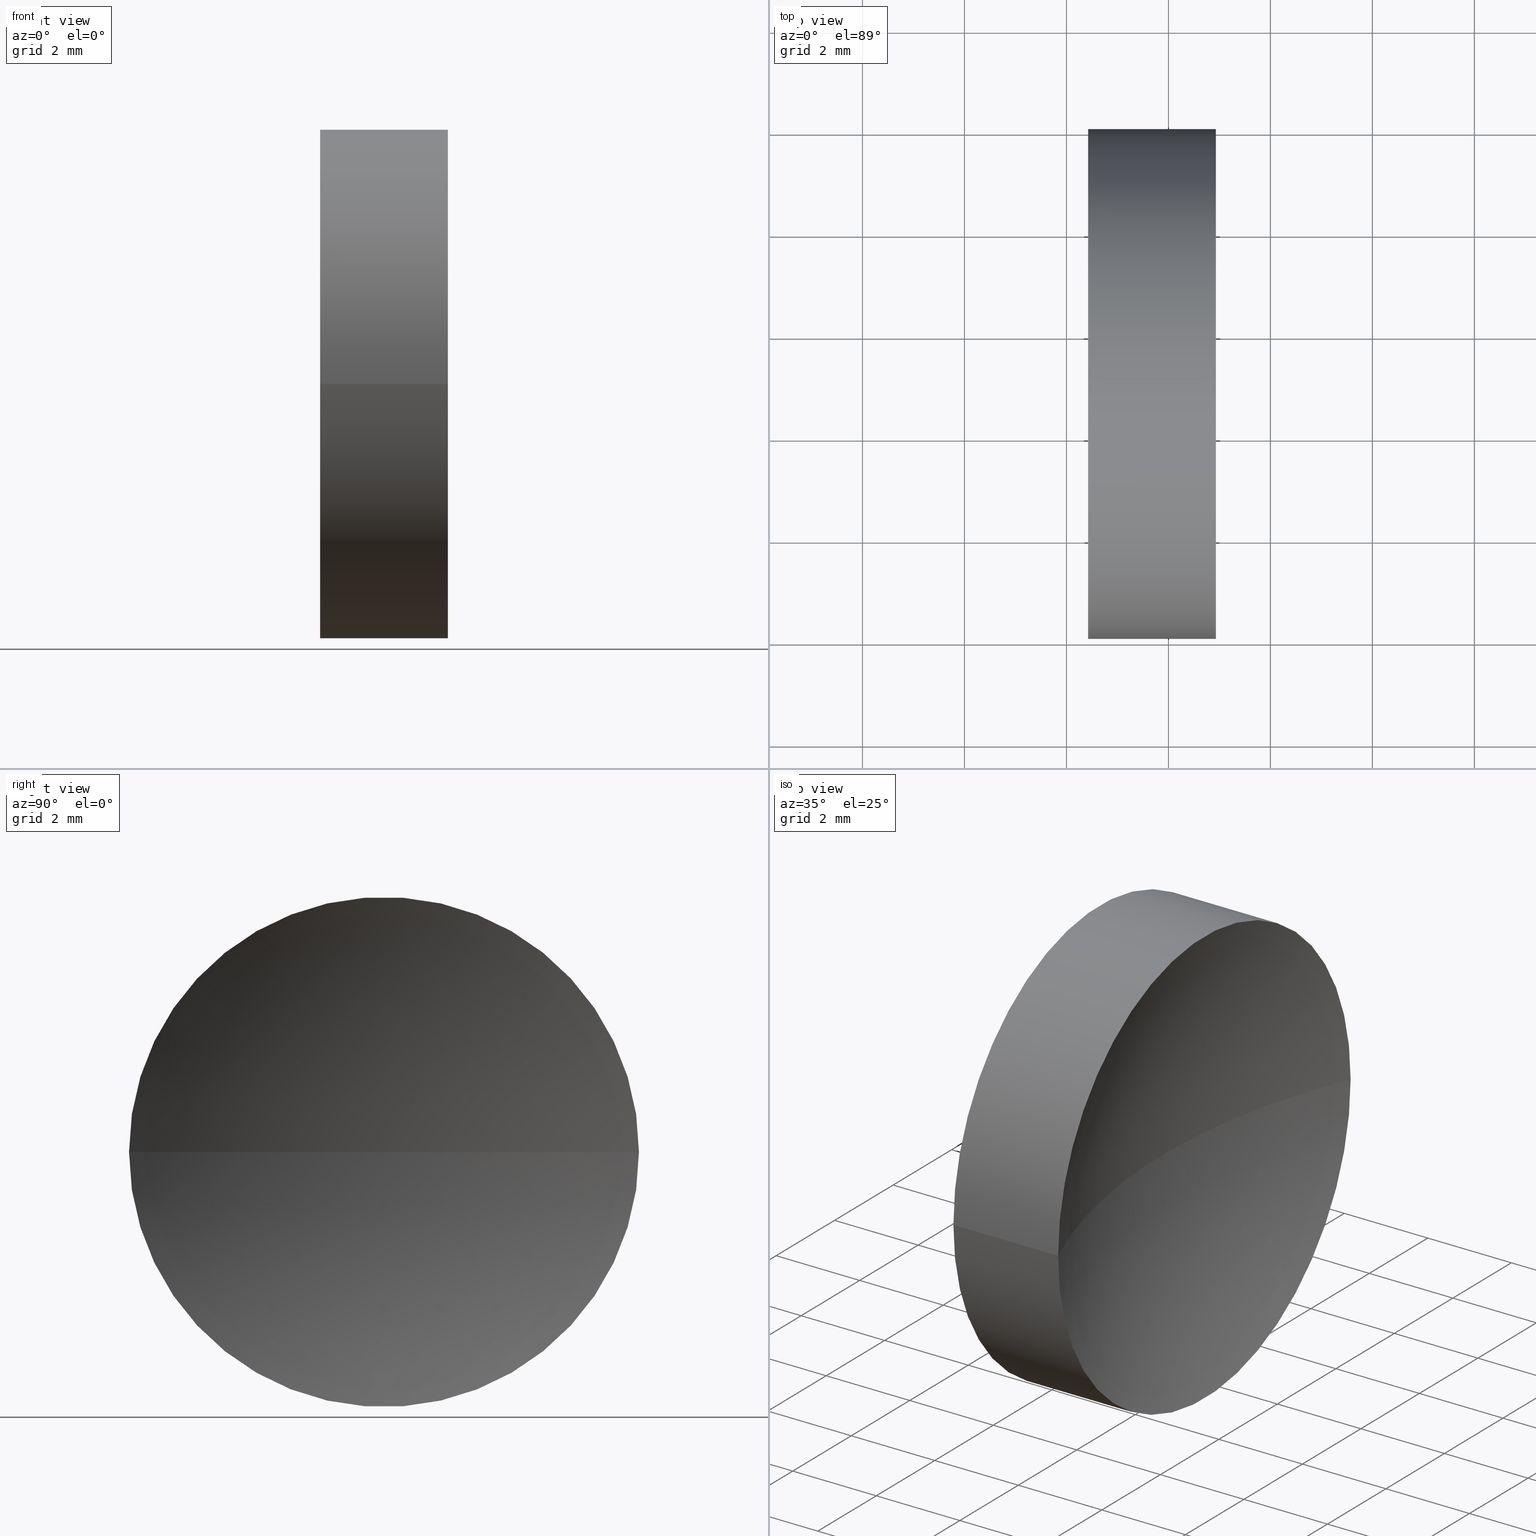
[diagram: canonical four-view strip — front | top / right | iso, engineering-drawing reading convention]
A machine part, canonical four-view strip (front | top / right | iso — engineering-drawing reading convention). The complete STEP part file that produces these views, byte-faithful:
ISO-10303-21;
HEADER;
FILE_DESCRIPTION (( 'STEP AP214' ),
    '1' );
FILE_NAME ('120133.STEP',
    '2019-06-19T06:20:14',
    ( '' ),
    ( '' ),
    'SwSTEP 2.0',
    'SolidWorks 2016',
    '' );
FILE_SCHEMA (( 'AUTOMOTIVE_DESIGN' ));
ENDSEC;

DATA;
#1 = UNCERTAINTY_MEASURE_WITH_UNIT (LENGTH_MEASURE( 1.000000000000000100E-005 ), #157, 'distance_accuracy_value', 'NONE');
#2 = EDGE_LOOP ( 'NONE', ( #72, #146, #71 ) ) ;
#3 = CIRCLE ( 'NONE', #47, 12.91000000000000500 ) ;
#4 = DIRECTION ( 'NONE',  ( 0.0000000000000000000, -1.000000000000000000, 0.0000000000000000000 ) ) ;
#5 = PLANE ( 'NONE',  #114 ) ;
#6 = DIRECTION ( 'NONE',  ( 0.0000000000000000000, -1.000000000000000000, 0.0000000000000000000 ) ) ;
#7 = FILL_AREA_STYLE_COLOUR ( '', #107 ) ;
#8 = CARTESIAN_POINT ( 'NONE',  ( 21.50597511808246100, 18.03112609140304200, 6.123233995736768300E-016 ) ) ;
#9 = PRODUCT_DEFINITION ( 'δ֪', '', #22, #16 ) ;
#10 = PRODUCT_CONTEXT ( 'NONE', #126, 'mechanical' ) ;
#11 = ORIENTED_EDGE ( 'NONE', *, *, #96, .T. ) ;
#12 = SPHERICAL_SURFACE ( 'NONE', #59, 12.91000000000000500 ) ;
#13 = CIRCLE ( 'NONE', #61, 5.000000000000000900 ) ;
#14 = VERTEX_POINT ( 'NONE', #17 ) ;
#15 = AXIS2_PLACEMENT_3D ( 'NONE', #130, #144, #160 ) ;
#16 = PRODUCT_DEFINITION_CONTEXT ( 'detailed design', #131, 'design' ) ;
#17 = CARTESIAN_POINT ( 'NONE',  ( 24.93179112749126200, 8.031126091403027800, -6.123233995736775200E-016 ) ) ;
#18 = DIRECTION ( 'NONE',  ( 1.000000000000000000, -3.159171411554934600E-016, 0.0000000000000000000 ) ) ;
#19 = ADVANCED_FACE ( 'NONE', ( #45 ), #68, .F. ) ;
#20 = FILL_AREA_STYLE_COLOUR ( '', #58 ) ;
#21 = DIRECTION ( 'NONE',  ( 0.0000000000000000000, -1.000000000000000000, 0.0000000000000000000 ) ) ;
#22 = PRODUCT_DEFINITION_FORMATION_WITH_SPECIFIED_SOURCE ( '�κ�', '', #31, .NOT_KNOWN. ) ;
#23 = DIRECTION ( 'NONE',  ( 5.374820994505984400E-016, 1.000000000000000000, 0.0000000000000000000 ) ) ;
#24 = DIRECTION ( 'NONE',  ( -1.000000000000000000, 3.159171411554934600E-016, -0.0000000000000000000 ) ) ;
#25 = VERTEX_POINT ( 'NONE', #150 ) ;
#26 = FACE_OUTER_BOUND ( 'NONE', #2, .T. ) ;
#27 = ADVANCED_FACE ( 'NONE', ( #83 ), #5, .F. ) ;
#28 = CARTESIAN_POINT ( 'NONE',  ( 21.50597511808246100, 13.03112609140304200, 0.0000000000000000000 ) ) ;
#29 = DIRECTION ( 'NONE',  ( 3.159171411554934600E-016, 1.000000000000000000, 0.0000000000000000000 ) ) ;
#30 =( NAMED_UNIT ( * ) PLANE_ANGLE_UNIT ( ) SI_UNIT ( $, .RADIAN. ) );
#31 = PRODUCT ( '120133', '120133', '', ( #10 ) ) ;
#32 = CIRCLE ( 'NONE', #145, 5.000000000000000900 ) ;
#33 = CARTESIAN_POINT ( 'NONE',  ( 22.42423205362066000, 8.031126091403040200, 0.0000000000000000000 ) ) ;
#34 = SURFACE_SIDE_STYLE ('',( #143 ) ) ;
#35 =( GEOMETRIC_REPRESENTATION_CONTEXT ( 3 ) GLOBAL_UNCERTAINTY_ASSIGNED_CONTEXT ( ( #36 ) ) GLOBAL_UNIT_ASSIGNED_CONTEXT ( ( #93, #136, #64 ) ) REPRESENTATION_CONTEXT ( 'NONE', 'WORKASPACE' ) );
#36 = UNCERTAINTY_MEASURE_WITH_UNIT (LENGTH_MEASURE( 1.000000000000000100E-005 ), #93, 'distance_accuracy_value', 'NONE');
#37 = ORIENTED_EDGE ( 'NONE', *, *, #106, .T. ) ;
#38 = MECHANICAL_DESIGN_GEOMETRIC_PRESENTATION_REPRESENTATION (  '', ( #48 ), #129 ) ;
#39 = VECTOR ( 'NONE', #78, 1000.000000000000000 ) ;
#40 = CARTESIAN_POINT ( 'NONE',  ( 36.83423205362066000, 13.03112609140303100, 0.0000000000000000000 ) ) ;
#41 = EDGE_LOOP ( 'NONE', ( #57, #165, #120, #117 ) ) ;
#42 = CARTESIAN_POINT ( 'NONE',  ( 21.50597511808246100, 8.031126091403040200, 0.0000000000000000000 ) ) ;
#43 = AXIS2_PLACEMENT_3D ( 'NONE', #156, #102, #6 ) ;
#44 = CARTESIAN_POINT ( 'NONE',  ( 36.83423205362066000, 13.03112609140303100, 0.0000000000000000000 ) ) ;
#45 = FACE_OUTER_BOUND ( 'NONE', #110, .T. ) ;
#46 = ORIENTED_EDGE ( 'NONE', *, *, #122, .T. ) ;
#47 = AXIS2_PLACEMENT_3D ( 'NONE', #44, #138, #89 ) ;
#48 = STYLED_ITEM ( 'NONE', ( #80 ), #81 ) ;
#49 = FACE_OUTER_BOUND ( 'NONE', #60, .T. ) ;
#50 = PRODUCT_RELATED_PRODUCT_CATEGORY ( 'part', '', ( #31 ) ) ;
#51 = DIRECTION ( 'NONE',  ( 5.374820994505984400E-016, 1.000000000000000000, 0.0000000000000000000 ) ) ;
#52 = DIRECTION ( 'NONE',  ( 0.0000000000000000000, 0.0000000000000000000, 1.000000000000000000 ) ) ;
#53 = DIRECTION ( 'NONE',  ( 0.0000000000000000000, -1.000000000000000000, 0.0000000000000000000 ) ) ;
#54 = DIRECTION ( 'NONE',  ( -1.000000000000000000, 3.159171411554934600E-016, -0.0000000000000000000 ) ) ;
#55 = DIRECTION ( 'NONE',  ( -1.000000000000000000, 3.159171411554934600E-016, -0.0000000000000000000 ) ) ;
#56 = ADVANCED_FACE ( 'NONE', ( #49 ), #134, .T. ) ;
#57 = ORIENTED_EDGE ( 'NONE', *, *, #84, .T. ) ;
#58 = COLOUR_RGB ( '',1.000000000000000000, 1.000000000000000000, 1.000000000000000000 ) ;
#59 = AXIS2_PLACEMENT_3D ( 'NONE', #91, #158, #23 ) ;
#60 = EDGE_LOOP ( 'NONE', ( #75, #46, #125, #139 ) ) ;
#61 = AXIS2_PLACEMENT_3D ( 'NONE', #90, #54, #4 ) ;
#62 = ADVANCED_BREP_SHAPE_REPRESENTATION ( '120133', ( #81, #15 ), #35 ) ;
#63 = CIRCLE ( 'NONE', #43, 5.000000000000002700 ) ;
#64 =( NAMED_UNIT ( * ) SI_UNIT ( $, .STERADIAN. ) SOLID_ANGLE_UNIT ( ) );
#65 = MECHANICAL_DESIGN_GEOMETRIC_PRESENTATION_REPRESENTATION (  '', ( #121 ), #132 ) ;
#66 = DIRECTION ( 'NONE',  ( -1.000000000000000000, 3.159171411554934600E-016, -0.0000000000000000000 ) ) ;
#67 = APPLICATION_PROTOCOL_DEFINITION ( 'draft international standard', 'automotive_design', 1998, #131 ) ;
#68 = SPHERICAL_SURFACE ( 'NONE', #164, 12.91000000000000500 ) ;
#69 = SURFACE_STYLE_FILL_AREA ( #151 ) ;
#70 = CIRCLE ( 'NONE', #105, 12.91000000000000500 ) ;
#71 = ORIENTED_EDGE ( 'NONE', *, *, #96, .F. ) ;
#72 = ORIENTED_EDGE ( 'NONE', *, *, #84, .F. ) ;
#73 = ADVANCED_FACE ( 'NONE', ( #26 ), #12, .F. ) ;
#74 = SURFACE_STYLE_USAGE ( .BOTH. , #140 ) ;
#75 = ORIENTED_EDGE ( 'NONE', *, *, #119, .F. ) ;
#76 = CARTESIAN_POINT ( 'NONE',  ( 22.42423205362066000, 13.03112609140304200, 0.0000000000000000000 ) ) ;
#77 = DIRECTION ( 'NONE',  ( 1.000000000000000000, 0.0000000000000000000, 0.0000000000000000000 ) ) ;
#78 = DIRECTION ( 'NONE',  ( -1.000000000000000000, 3.159171411554934600E-016, -0.0000000000000000000 ) ) ;
#79 = CARTESIAN_POINT ( 'NONE',  ( 22.42423205362066000, 18.03112609140304200, 6.123233995736768300E-016 ) ) ;
#80 = PRESENTATION_STYLE_ASSIGNMENT (( #115 ) ) ;
#81 = MANIFOLD_SOLID_BREP ( '��ת1', #116 ) ;
#82 = EDGE_CURVE ( 'NONE', #14, #104, #3, .T. ) ;
#83 = FACE_OUTER_BOUND ( 'NONE', #109, .T. ) ;
#84 = EDGE_CURVE ( 'NONE', #14, #25, #63, .T. ) ;
#85 = VERTEX_POINT ( 'NONE', #33 ) ;
#86 = DIRECTION ( 'NONE',  ( -1.000000000000000000, 3.159171411554934600E-016, -0.0000000000000000000 ) ) ;
#87 = CARTESIAN_POINT ( 'NONE',  ( 22.42423205362066000, 13.03112609140304200, 0.0000000000000000000 ) ) ;
#88 =( LENGTH_UNIT ( ) NAMED_UNIT ( * ) SI_UNIT ( .MILLI., .METRE. ) );
#89 = DIRECTION ( 'NONE',  ( 0.0000000000000000000, 1.000000000000000000, 1.224646799147353200E-016 ) ) ;
#90 = CARTESIAN_POINT ( 'NONE',  ( 22.42423205362066000, 13.03112609140304200, 0.0000000000000000000 ) ) ;
#91 = CARTESIAN_POINT ( 'NONE',  ( 36.83423205362066000, 13.03112609140303100, 0.0000000000000000000 ) ) ;
#92 = AXIS2_PLACEMENT_3D ( 'NONE', #100, #127, #53 ) ;
#93 =( LENGTH_UNIT ( ) NAMED_UNIT ( * ) SI_UNIT ( .MILLI., .METRE. ) );
#94 = FILL_AREA_STYLE ('',( #7 ) ) ;
#95 = PRESENTATION_STYLE_ASSIGNMENT (( #74 ) ) ;
#96 = EDGE_CURVE ( 'NONE', #25, #104, #70, .T. ) ;
#97 = ORIENTED_EDGE ( 'NONE', *, *, #82, .F. ) ;
#98 = CYLINDRICAL_SURFACE ( 'NONE', #155, 5.000000000000000900 ) ;
#99 = CARTESIAN_POINT ( 'NONE',  ( 36.83423205362066000, 13.03112609140303100, 0.0000000000000000000 ) ) ;
#100 = CARTESIAN_POINT ( 'NONE',  ( 21.50597511808246100, 13.03112609140304200, 0.0000000000000000000 ) ) ;
#101 = DIRECTION ( 'NONE',  ( 0.0000000000000000000, -1.000000000000000000, 0.0000000000000000000 ) ) ;
#102 = DIRECTION ( 'NONE',  ( -1.000000000000000000, 3.159171411554934600E-016, -0.0000000000000000000 ) ) ;
#103 = CARTESIAN_POINT ( 'NONE',  ( 24.93179112749126200, 13.03112609140304000, 0.0000000000000000000 ) ) ;
#104 = VERTEX_POINT ( 'NONE', #128 ) ;
#105 = AXIS2_PLACEMENT_3D ( 'NONE', #40, #52, #77 ) ;
#106 = EDGE_CURVE ( 'NONE', #85, #112, #13, .T. ) ;
#107 = COLOUR_RGB ( '',1.000000000000000000, 1.000000000000000000, 1.000000000000000000 ) ;
#108 = LINE ( 'NONE', #8, #159 ) ;
#109 = EDGE_LOOP ( 'NONE', ( #37, #123 ) ) ;
#110 = EDGE_LOOP ( 'NONE', ( #97, #152, #11 ) ) ;
#111 = DIRECTION ( 'NONE',  ( 0.0000000000000000000, 0.0000000000000000000, -1.000000000000000000 ) ) ;
#112 = VERTEX_POINT ( 'NONE', #79 ) ;
#113 =( NAMED_UNIT ( * ) SI_UNIT ( $, .STERADIAN. ) SOLID_ANGLE_UNIT ( ) );
#114 = AXIS2_PLACEMENT_3D ( 'NONE', #87, #18, #29 ) ;
#115 = SURFACE_STYLE_USAGE ( .BOTH. , #34 ) ;
#116 = CLOSED_SHELL ( 'NONE', ( #137, #73, #19, #56, #27 ) ) ;
#117 = ORIENTED_EDGE ( 'NONE', *, *, #148, .F. ) ;
#118 = SHAPE_DEFINITION_REPRESENTATION ( #153, #62 ) ;
#119 = EDGE_CURVE ( 'NONE', #25, #112, #108, .T. ) ;
#120 = ORIENTED_EDGE ( 'NONE', *, *, #106, .F. ) ;
#121 = STYLED_ITEM ( 'NONE', ( #95 ), #62 ) ;
#122 = EDGE_CURVE ( 'NONE', #25, #14, #147, .T. ) ;
#123 = ORIENTED_EDGE ( 'NONE', *, *, #149, .T. ) ;
#124 =( NAMED_UNIT ( * ) SI_UNIT ( $, .STERADIAN. ) SOLID_ANGLE_UNIT ( ) );
#125 = ORIENTED_EDGE ( 'NONE', *, *, #148, .T. ) ;
#126 = APPLICATION_CONTEXT ( 'automotive_design' ) ;
#127 = DIRECTION ( 'NONE',  ( -1.000000000000000000, 3.159171411554934600E-016, -0.0000000000000000000 ) ) ;
#128 = CARTESIAN_POINT ( 'NONE',  ( 23.92423205362065300, 13.03112609140303700, 0.0000000000000000000 ) ) ;
#129 =( GEOMETRIC_REPRESENTATION_CONTEXT ( 3 ) GLOBAL_UNCERTAINTY_ASSIGNED_CONTEXT ( ( #1 ) ) GLOBAL_UNIT_ASSIGNED_CONTEXT ( ( #157, #141, #124 ) ) REPRESENTATION_CONTEXT ( 'NONE', 'WORKASPACE' ) );
#130 = CARTESIAN_POINT ( 'NONE',  ( 0.0000000000000000000, 0.0000000000000000000, 0.0000000000000000000 ) ) ;
#131 = APPLICATION_CONTEXT ( 'automotive_design' ) ;
#132 =( GEOMETRIC_REPRESENTATION_CONTEXT ( 3 ) GLOBAL_UNCERTAINTY_ASSIGNED_CONTEXT ( ( #161 ) ) GLOBAL_UNIT_ASSIGNED_CONTEXT ( ( #88, #30, #113 ) ) REPRESENTATION_CONTEXT ( 'NONE', 'WORKASPACE' ) );
#133 = PRESENTATION_LAYER_ASSIGNMENT (  '', '', ( #48 ) ) ;
#134 = CYLINDRICAL_SURFACE ( 'NONE', #92, 5.000000000000000900 ) ;
#135 = FACE_OUTER_BOUND ( 'NONE', #41, .T. ) ;
#136 =( NAMED_UNIT ( * ) PLANE_ANGLE_UNIT ( ) SI_UNIT ( $, .RADIAN. ) );
#137 = ADVANCED_FACE ( 'NONE', ( #135 ), #98, .T. ) ;
#138 = DIRECTION ( 'NONE',  ( 3.868869157118576300E-032, 1.224646799147353200E-016, -1.000000000000000000 ) ) ;
#139 = ORIENTED_EDGE ( 'NONE', *, *, #149, .F. ) ;
#140 = SURFACE_SIDE_STYLE ('',( #69 ) ) ;
#141 =( NAMED_UNIT ( * ) PLANE_ANGLE_UNIT ( ) SI_UNIT ( $, .RADIAN. ) );
#142 = DIRECTION ( 'NONE',  ( 0.0000000000000000000, -1.000000000000000000, 0.0000000000000000000 ) ) ;
#143 = SURFACE_STYLE_FILL_AREA ( #94 ) ;
#144 = DIRECTION ( 'NONE',  ( 0.0000000000000000000, 0.0000000000000000000, 1.000000000000000000 ) ) ;
#145 = AXIS2_PLACEMENT_3D ( 'NONE', #76, #24, #101 ) ;
#146 = ORIENTED_EDGE ( 'NONE', *, *, #82, .T. ) ;
#147 = CIRCLE ( 'NONE', #163, 5.000000000000002700 ) ;
#148 = EDGE_CURVE ( 'NONE', #14, #85, #162, .T. ) ;
#149 = EDGE_CURVE ( 'NONE', #112, #85, #32, .T. ) ;
#150 = CARTESIAN_POINT ( 'NONE',  ( 24.93179112749126600, 18.03112609140304900, 0.0000000000000000000 ) ) ;
#151 = FILL_AREA_STYLE ('',( #20 ) ) ;
#152 = ORIENTED_EDGE ( 'NONE', *, *, #122, .F. ) ;
#153 = PRODUCT_DEFINITION_SHAPE ( 'NONE', 'NONE',  #9 ) ;
#154 = APPLICATION_PROTOCOL_DEFINITION ( 'draft international standard', 'automotive_design', 1998, #126 ) ;
#155 = AXIS2_PLACEMENT_3D ( 'NONE', #28, #66, #21 ) ;
#156 = CARTESIAN_POINT ( 'NONE',  ( 24.93179112749126200, 13.03112609140304000, 0.0000000000000000000 ) ) ;
#157 =( LENGTH_UNIT ( ) NAMED_UNIT ( * ) SI_UNIT ( .MILLI., .METRE. ) );
#158 = DIRECTION ( 'NONE',  ( 0.0000000000000000000, 0.0000000000000000000, -1.000000000000000000 ) ) ;
#159 = VECTOR ( 'NONE', #86, 1000.000000000000000 ) ;
#160 = DIRECTION ( 'NONE',  ( 1.000000000000000000, 0.0000000000000000000, 0.0000000000000000000 ) ) ;
#161 = UNCERTAINTY_MEASURE_WITH_UNIT (LENGTH_MEASURE( 1.000000000000000100E-005 ), #88, 'distance_accuracy_value', 'NONE');
#162 = LINE ( 'NONE', #42, #39 ) ;
#163 = AXIS2_PLACEMENT_3D ( 'NONE', #103, #55, #142 ) ;
#164 = AXIS2_PLACEMENT_3D ( 'NONE', #99, #111, #51 ) ;
#165 = ORIENTED_EDGE ( 'NONE', *, *, #119, .T. ) ;
#166 = PRESENTATION_LAYER_ASSIGNMENT (  '', '', ( #121 ) ) ;
ENDSEC;
END-ISO-10303-21;
